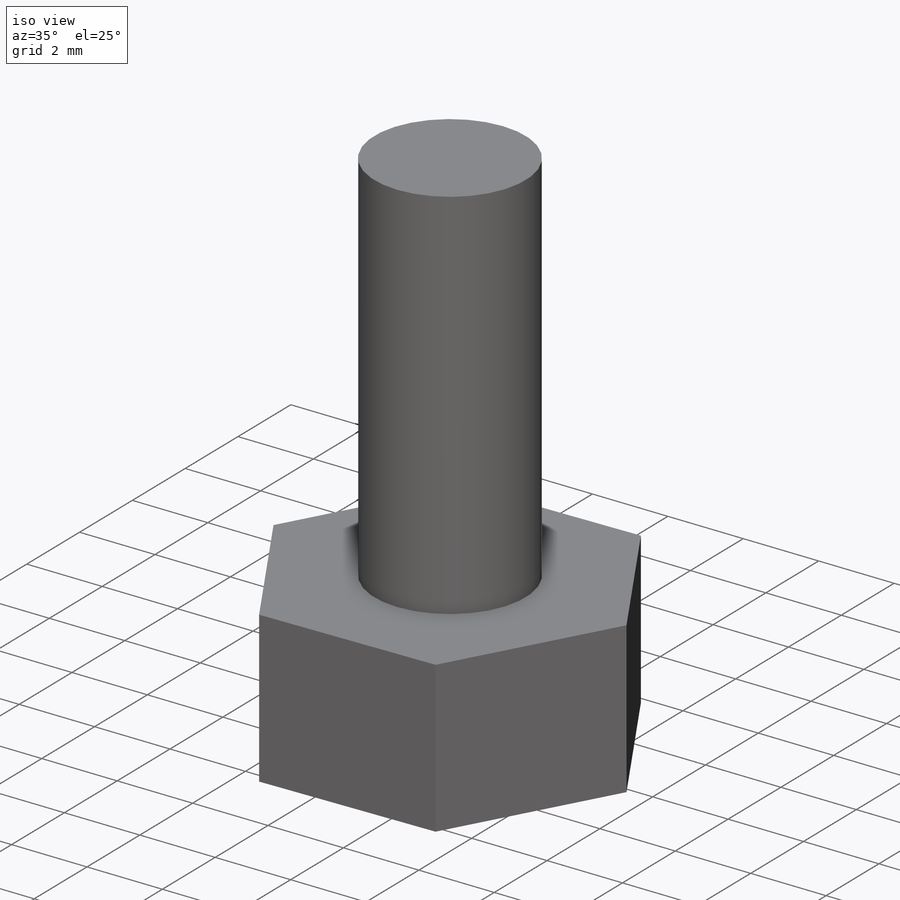
[diagram: iso view]
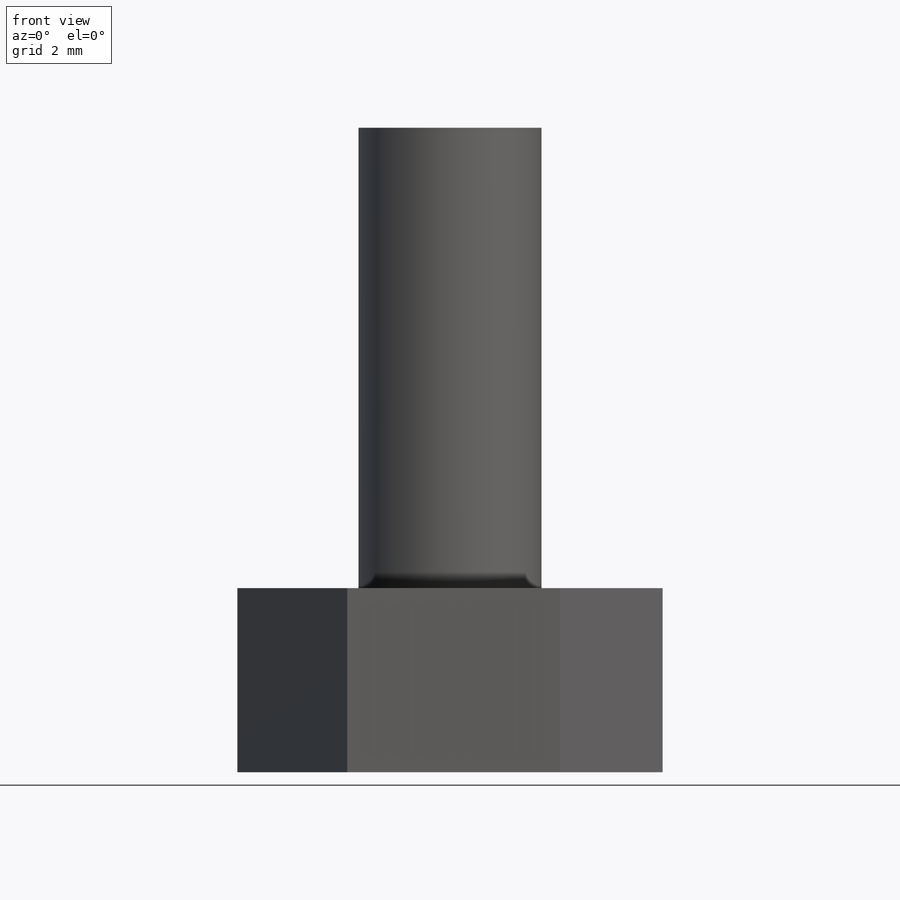
[diagram: front view]
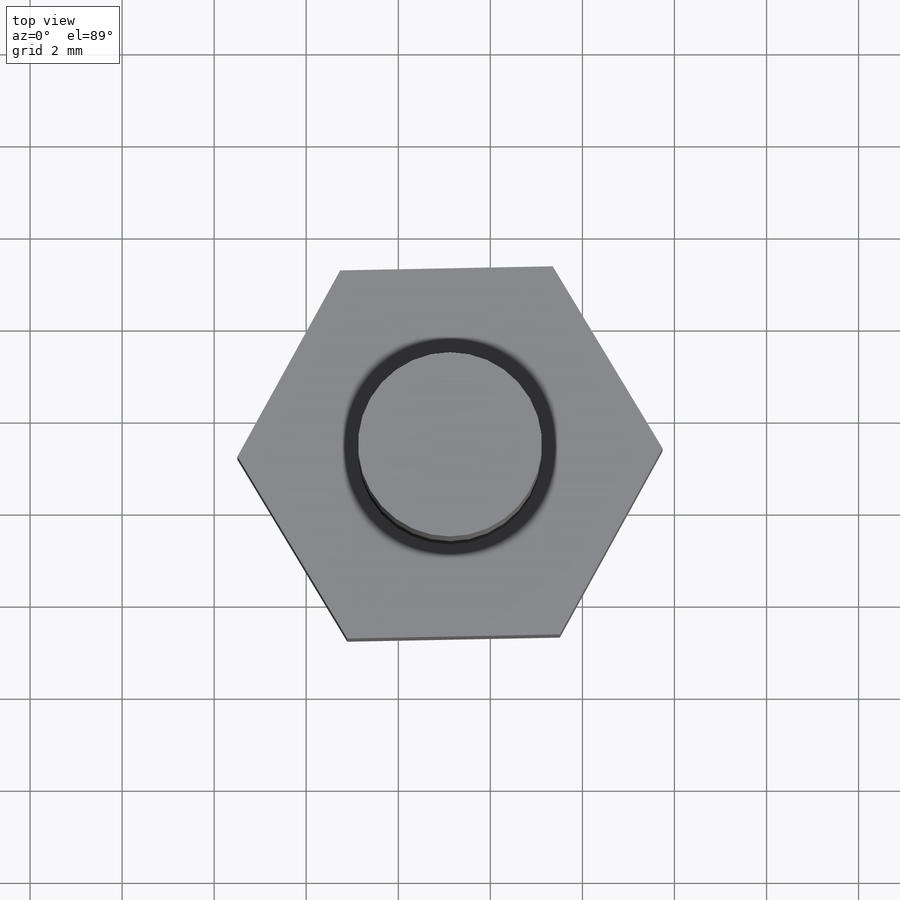
[diagram: top view]
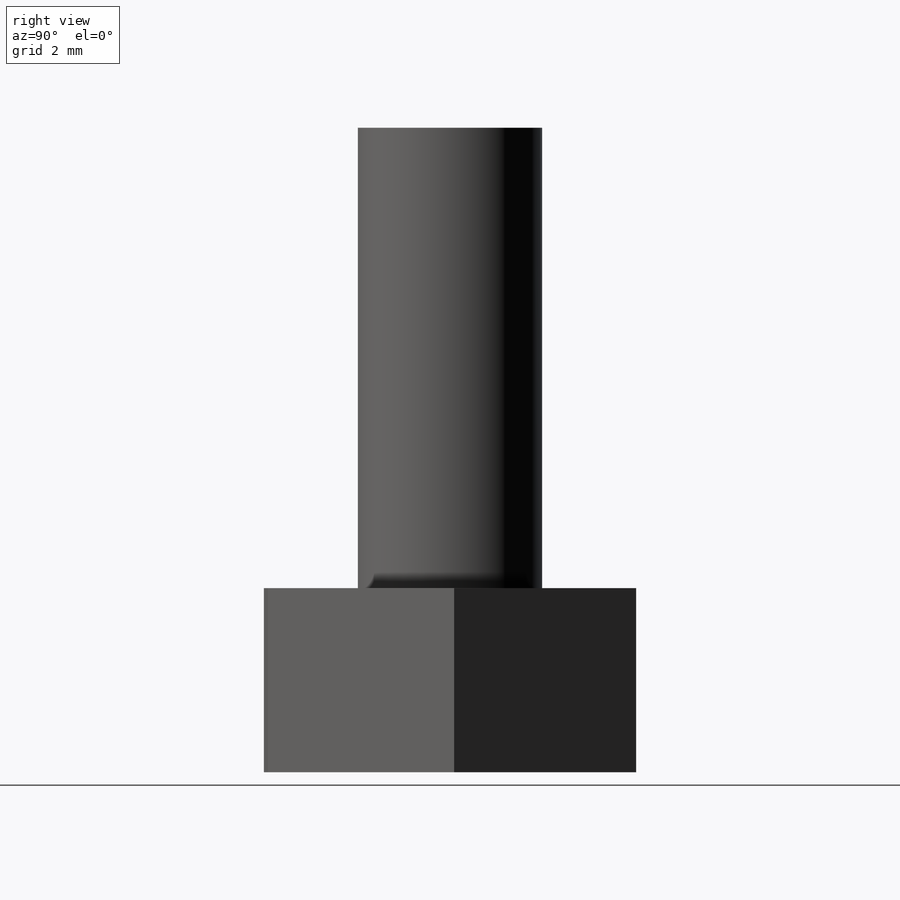
[diagram: right view]
SOLIDWORKS PART (.sldprt)
format: sldprt  version: not decoded by parser v0  size: 321,024 bytes
history: native  units: mm
features: sketch x3, extrude x2, material x1 (+11 scaffold rows collapsed)
feature tree (17):
  scaffold x11  (default folders/planes/origin — collapsed)
  material  "Material <not specified>"
  sketch  "Sketch1"  dims[D1=4.0mm]
  extrude  "Boss-Extrude1"  Depth=10mm
  sketch  "Sketch2"  dims[c1.D2=4.0mm c1.D3=4.0mm c1.D1=4.0mm c2.D2=4.0mm c2.D3=~4.013144mm c3.D2=4.0mm c3.D3=~4.530356mm c4.D3=60.0deg c5.D3=4.0mm]
  sketch  "Sketch4"  dims[D1=4.0mm D2=4.0mm D3=4.0mm]
  extrude  "Boss-Extrude4"  Depth=4mm
decode coverage: 5 of 5 modeling features carry decoded parameters
note: ~ marks probable driven/reference dimensions
note: suppression state not decoded; provenance and decode notes live in map.json
